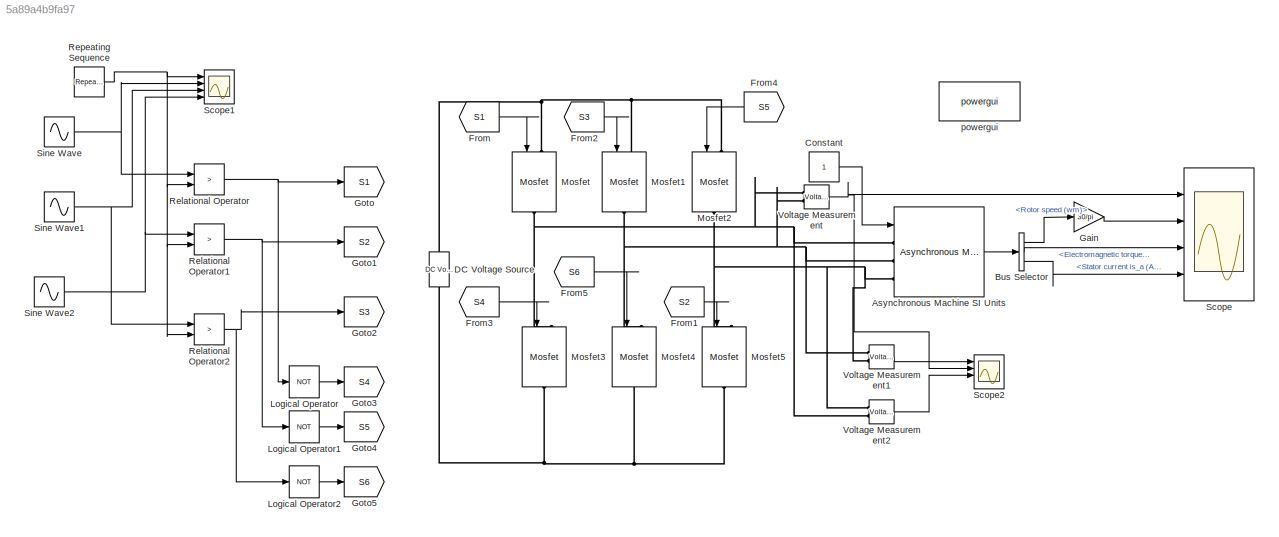
MODEL slx_5a89a4b9fa97
KIND model
CONFIG AbsTol = auto
CONFIG EnableMultiTasking = off
CONFIG FixedStep = auto
CONFIG MaxStep = auto
CONFIG MinStep = auto
CONFIG RelTol = 1e-3
CONFIG SampleTimeConstraint = Unconstrained
CONFIG Solver = VariableStepAuto
CONFIG SolverName = VariableStepAuto
CONFIG StartTime = 0.0
CONFIG StopTime = 2
BLOCK [Reference] Asynchronous Machine SI Units  REF=powerlib/Machines/Asynchronous Machine
SI Units
  Ports = [1, 1, 0, 0, 0, 3]
  SourceBlock = powerlib/Machines/Asynchronous Machine\nSI Units
  SourceProductBaseCode = PS
  SourceProductName = Simscape Electrical
  SourceType = Asynchronous Machine
BLOCK [BusSelector] Bus Selector
  OutputAsBus = off
  OutputSignals = Mechanical.Rotor speed (wm),Mechanical.Electromagnetic torque Te (N*m),Stator measurements.Stator current is_a (A)
  Ports = [1, 3]
BLOCK [Constant] Constant
BLOCK [Reference] DC Voltage Source  REF=powerlib/Electrical
Sources/DC Voltage Source
  Ports = [0, 0, 0, 0, 0, 1, 1]
  SourceBlock = powerlib/Electrical\nSources/DC Voltage Source
  SourceProductBaseCode = PS
  SourceProductName = Simscape Electrical
  SourceType = DC Voltage Source
BLOCK [From] From
  GotoTag = S1
BLOCK [From] From1
  GotoTag = S2
BLOCK [From] From2
  GotoTag = S3
BLOCK [From] From3
  GotoTag = S4
BLOCK [From] From4
  GotoTag = S5
BLOCK [From] From5
  GotoTag = S6
BLOCK [Gain] Gain
  Gain = 30/pi
  OutDataTypeStr = Inherit: Inherit via internal rule
  ParamDataTypeStr = Inherit: Inherit via internal rule
  SaturateOnIntegerOverflow = off
BLOCK [Goto] Goto
  GotoTag = S1
BLOCK [Goto] Goto1
  GotoTag = S2
BLOCK [Goto] Goto2
  GotoTag = S3
BLOCK [Goto] Goto3
  GotoTag = S4
BLOCK [Goto] Goto4
  GotoTag = S5
BLOCK [Goto] Goto5
  GotoTag = S6
BLOCK [Logic] Logical Operator
  AllPortsSameDT = off
  Operator = NOT
  OutDataTypeStr = boolean
  Ports = [1, 1]
BLOCK [Logic] Logical Operator1
  AllPortsSameDT = off
  Operator = NOT
  OutDataTypeStr = boolean
  Ports = [1, 1]
BLOCK [Logic] Logical Operator2
  AllPortsSameDT = off
  Operator = NOT
  OutDataTypeStr = boolean
  Ports = [1, 1]
BLOCK [Reference] Mosfet  REF=powerlib/Power
Electronics/Mosfet
  Ports = [1, 0, 0, 0, 0, 1, 1]
  SourceBlock = powerlib/Power\nElectronics/Mosfet
  SourceProductBaseCode = PS
  SourceProductName = Simscape Electrical
  SourceType = Mosfet
BLOCK [Reference] Mosfet1  REF=powerlib/Power
Electronics/Mosfet
  Ports = [1, 0, 0, 0, 0, 1, 1]
  SourceBlock = powerlib/Power\nElectronics/Mosfet
  SourceProductBaseCode = PS
  SourceProductName = Simscape Electrical
  SourceType = Mosfet
BLOCK [Reference] Mosfet2  REF=powerlib/Power
Electronics/Mosfet
  Ports = [1, 0, 0, 0, 0, 1, 1]
  SourceBlock = powerlib/Power\nElectronics/Mosfet
  SourceProductBaseCode = PS
  SourceProductName = Simscape Electrical
  SourceType = Mosfet
BLOCK [Reference] Mosfet3  REF=powerlib/Power
Electronics/Mosfet
  Ports = [1, 0, 0, 0, 0, 1, 1]
  SourceBlock = powerlib/Power\nElectronics/Mosfet
  SourceProductBaseCode = PS
  SourceProductName = Simscape Electrical
  SourceType = Mosfet
BLOCK [Reference] Mosfet4  REF=powerlib/Power
Electronics/Mosfet
  Ports = [1, 0, 0, 0, 0, 1, 1]
  SourceBlock = powerlib/Power\nElectronics/Mosfet
  SourceProductBaseCode = PS
  SourceProductName = Simscape Electrical
  SourceType = Mosfet
BLOCK [Reference] Mosfet5  REF=powerlib/Power
Electronics/Mosfet
  Ports = [1, 0, 0, 0, 0, 1, 1]
  SourceBlock = powerlib/Power\nElectronics/Mosfet
  SourceProductBaseCode = PS
  SourceProductName = Simscape Electrical
  SourceType = Mosfet
BLOCK [RelationalOperator] Relational Operator
  InputSameDT = off
  Operator = >
  OutDataTypeStr = boolean
  Ports = [2, 1]
  RndMeth = Simplest
BLOCK [RelationalOperator] Relational Operator1
  InputSameDT = off
  Operator = >
  OutDataTypeStr = boolean
  Ports = [2, 1]
  RndMeth = Simplest
BLOCK [RelationalOperator] Relational Operator2
  InputSameDT = off
  Operator = >
  OutDataTypeStr = boolean
  Ports = [2, 1]
  RndMeth = Simplest
BLOCK [Reference] Repeating Sequence  REF=simulink/Sources/Repeating
Sequence
  Ports = [0, 1]
  SourceBlock = simulink/Sources/Repeating\nSequence
  SourceProductBaseCode = SL
  SourceProductName = Simulink
  SourceType = Repeating table
BLOCK [Scope] Scope
  Floating = off
  NumInputPorts = 4
  Ports = [4]
  ScopeSpecificationString = Simulink.scopes.TimeScopeBlockCfg('CurrentConfiguration', extmgr.ConfigurationSet(extmgr.Configuration('Core','General UI',true,'FigureColor',[1 1 1]),extmgr.Configuration('Core','Source UI',true),extmgr.Configuration('Sources','WiredSimulink',true),extmgr.Configuration('Visuals','Time Domain',true,'SerializedDisplays',{struct('MinYLimReal','-750.70519','MaxYLimReal','750.32598','YLabelReal','','M...<+4031ch>
BLOCK [Scope] Scope1
  Floating = off
  NumInputPorts = 4
  Ports = [4]
  ScopeSpecificationString = Simulink.scopes.TimeScopeBlockCfg('CurrentConfiguration', extmgr.ConfigurationSet(extmgr.Configuration('Core','General UI',true),extmgr.Configuration('Core','Source UI',true),extmgr.Configuration('Sources','WiredSimulink',true,'DataLoggingVariableName','ScopeData1'),extmgr.Configuration('Visuals','Time Domain',true,'SerializedDisplays',{struct('MinYLimReal','-1.08253','MaxYLimReal','1.08253','YLab...<+3494ch>
BLOCK [Scope] Scope2
  Floating = off
  NumInputPorts = 4
  Ports = [4]
  ScopeSpecificationString = Simulink.scopes.TimeScopeBlockCfg('CurrentConfiguration', extmgr.ConfigurationSet(extmgr.Configuration('Core','General UI',true),extmgr.Configuration('Core','Source UI',true),extmgr.Configuration('Sources','WiredSimulink',true,'DataLoggingVariableName','ScopeData2'),extmgr.Configuration('Visuals','Time Domain',true,'SerializedDisplays',{struct('MinYLimReal','-750.74829','MaxYLimReal','750.71389','...<+3519ch>
BLOCK [Sin] Sine Wave
  Amplitude = 0.6
  Frequency = 2*pi*50
  Ports = [0, 1]
  SampleTime = 0
BLOCK [Sin] Sine Wave1
  Amplitude = 0.6
  Frequency = 2*pi*50
  Phase = 120*pi/180
  Ports = [0, 1]
  SampleTime = 0
BLOCK [Sin] Sine Wave2
  Amplitude = 0.6
  Frequency = 2*pi*50
  Phase = 240*pi/180
  Ports = [0, 1]
  SampleTime = 0
BLOCK [Reference] Voltage Measurement  REF=powerlib/Measurements/Voltage Measurement
  Ports = [0, 1, 0, 0, 0, 2]
  SourceBlock = powerlib/Measurements/Voltage Measurement
  SourceProductBaseCode = PS
  SourceProductName = Simscape Electrical
  SourceType = Voltage Measurement
  UserDataPersistent = on
BLOCK [Reference] Voltage Measurement1  REF=powerlib/Measurements/Voltage Measurement
  Ports = [0, 1, 0, 0, 0, 2]
  SourceBlock = powerlib/Measurements/Voltage Measurement
  SourceProductBaseCode = PS
  SourceProductName = Simscape Electrical
  SourceType = Voltage Measurement
  UserDataPersistent = on
BLOCK [Reference] Voltage Measurement2  REF=powerlib/Measurements/Voltage Measurement
  Ports = [0, 1, 0, 0, 0, 2]
  SourceBlock = powerlib/Measurements/Voltage Measurement
  SourceProductBaseCode = PS
  SourceProductName = Simscape Electrical
  SourceType = Voltage Measurement
  UserDataPersistent = on
BLOCK [Reference] powergui  REF=powerlib/powergui
  Ports = []
  Priority = 1
  SourceBlock = powerlib/powergui
  SourceProductBaseCode = PS
  SourceProductName = Simscape Electrical
  SourceType = PSB option menu block
LINE Asynchronous Machine SI Units:1 -> Bus Selector:1
LINE Bus Selector:1 -> Gain:1
LINE Bus Selector:2 -> Scope:3
LINE Bus Selector:3 -> Scope:4
LINE Constant:1 -> Asynchronous Machine SI Units:1
LINE From1:1 -> Mosfet5:1
LINE From2:1 -> Mosfet1:1
LINE From3:1 -> Mosfet3:1
LINE From4:1 -> Mosfet2:1
LINE From5:1 -> Mosfet4:1
LINE From:1 -> Mosfet:1
LINE Gain:1 -> Scope:2
LINE Logical Operator1:1 -> Goto4:1
LINE Logical Operator2:1 -> Goto5:1
LINE Logical Operator:1 -> Goto3:1
NET Relational Operator1:1 -> Goto1:1, Logical Operator1:1
NET Relational Operator2:1 -> Goto2:1, Logical Operator2:1
NET Relational Operator:1 -> Goto:1, Logical Operator:1
NET Repeating Sequence:1 -> Relational Operator1:2, Relational Operator2:2, Relational Operator:2, Scope1:1
NET Sine Wave1:1 -> Relational Operator2:1, Scope1:3
NET Sine Wave2:1 -> Relational Operator1:1, Scope1:4
NET Sine Wave:1 -> Relational Operator:1, Scope1:2
LINE Voltage Measurement1:1 -> Scope2:1
LINE Voltage Measurement2:1 -> Scope2:3
NET Voltage Measurement:1 -> Scope2:2, Scope:1
PNET net1: Asynchronous Machine SI Units:LConn1 -- Mosfet3:LConn1 -- Mosfet:RConn1 -- Voltage Measurement2:LConn2 -- Voltage Measurement:LConn1
PNET net2: Asynchronous Machine SI Units:LConn2 -- Mosfet1:RConn1 -- Mosfet4:LConn1 -- Voltage Measurement1:LConn1 -- Voltage Measurement:LConn2
PNET net3: Asynchronous Machine SI Units:LConn3 -- Mosfet2:RConn1 -- Mosfet5:LConn1 -- Voltage Measurement1:LConn2 -- Voltage Measurement2:LConn1
PNET net4: DC Voltage Source:LConn1 -- Mosfet3:RConn1 -- Mosfet4:RConn1 -- Mosfet5:RConn1
PNET net5: DC Voltage Source:RConn1 -- Mosfet1:LConn1 -- Mosfet2:LConn1 -- Mosfet:LConn1
note: NET lines group one-source signal fan-out (src -> all destinations, sorted); 1:1 wires keep LINE; PNET lines group multi-terminal physical nets as a canonical sorted terminal list (undirected conserving connections); 2-terminal nets keep the pairwise PLINE form
